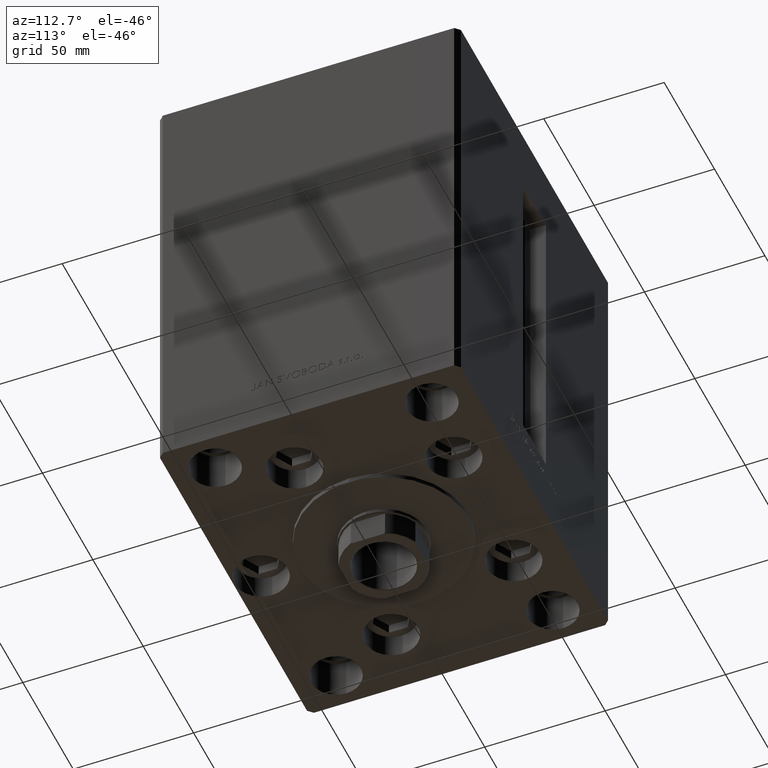
[diagram: clean part render]
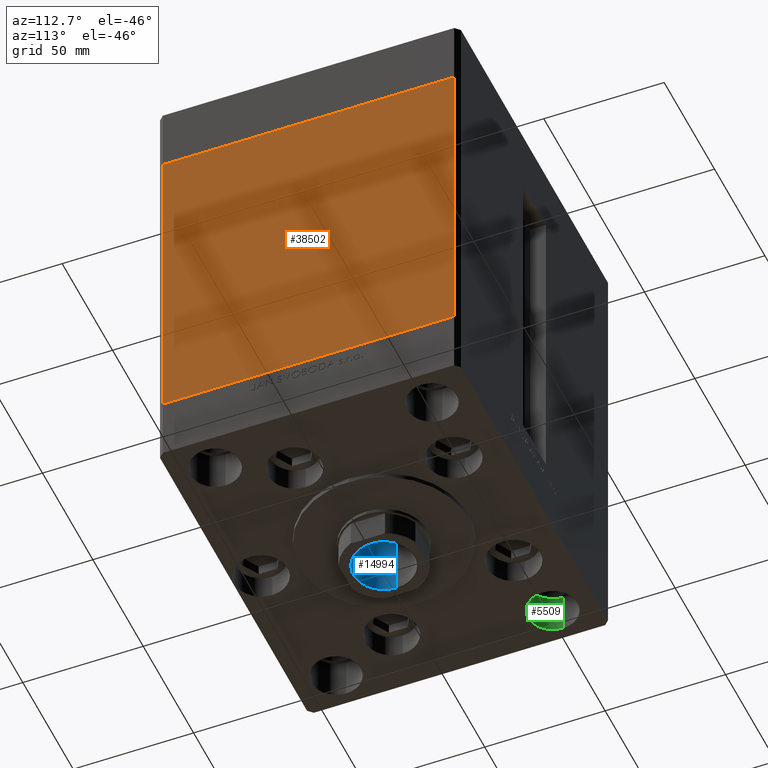
[diagram: same view with three faces highlighted in distinct colors, each labeled with its STEP entity id]
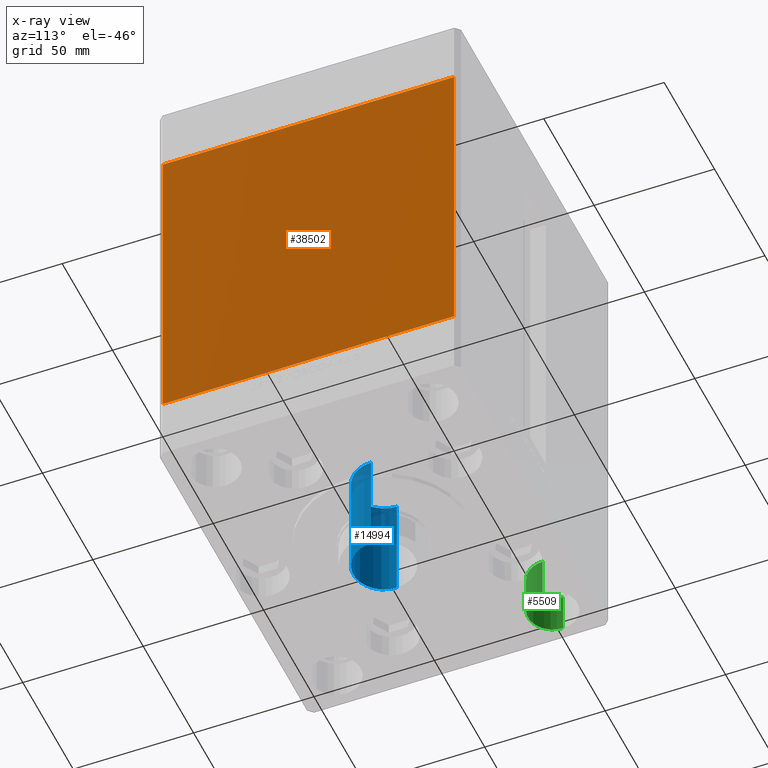
[diagram: x-ray of the same camera — body ghosted, the three highlighted faces saturated]
A machine part, auxiliary view with three faces highlighted in distinct colors.
The next image is the same camera in x-ray (body ghosted, the three faces saturated) — at least one of them is partly hidden behind the body in this view.
Their STEP definitions:

[orange] entity #38502 — the highlighted planar face has unit normal (1, -0, 0).
#124 = EDGE_CURVE ( 'NONE', #22841, #17940, #18735, .T. ) ;
#1098 = LINE ( 'NONE', #48137, #32062 ) ;
#1224 = CARTESIAN_POINT ( 'NONE',  ( 75.00000000000001421, 60.50000000000000000, 132.0000000000000000 ) ) ;
#1730 = LINE ( 'NONE', #1224, #46688 ) ;
#1803 = DIRECTION ( 'NONE',  ( 2.293849224432141861E-16, 1.000000000000000000, 0.000000000000000000 ) ) ;
#1838 = ORIENTED_EDGE ( 'NONE', *, *, #21310, .F. ) ;
#2305 = FACE_OUTER_BOUND ( 'NONE', #16033, .T. ) ;
#4684 = VECTOR ( 'NONE', #42601, 1000.000000000000000 ) ;
#7272 = CARTESIAN_POINT ( 'NONE',  ( 75.00000000000001421, 60.50000000000000000, 0.000000000000000000 ) ) ;
#10235 = ORIENTED_EDGE ( 'NONE', *, *, #124, .F. ) ;
#10344 = DIRECTION ( 'NONE',  ( -0.000000000000000000, -0.000000000000000000, -1.000000000000000000 ) ) ;
#10569 = CARTESIAN_POINT ( 'NONE',  ( 74.99999999999998579, -60.50000000000000000, 0.000000000000000000 ) ) ;
#12198 = VERTEX_POINT ( 'NONE', #44148 ) ;
#14515 = PLANE ( 'NONE',  #40558 ) ;
#15718 = EDGE_CURVE ( 'NONE', #36650, #17940, #37308, .T. ) ;
#16033 = EDGE_LOOP ( 'NONE', ( #10235, #1838, #46097, #40533 ) ) ;
#17310 = EDGE_CURVE ( 'NONE', #12198, #36650, #1098, .T. ) ;
#17371 = VECTOR ( 'NONE', #10344, 1000.000000000000000 ) ;
#17940 = VERTEX_POINT ( 'NONE', #10569 ) ;
#18735 = LINE ( 'NONE', #7272, #4684 ) ;
#21310 = EDGE_CURVE ( 'NONE', #12198, #22841, #1730, .T. ) ;
#22841 = VERTEX_POINT ( 'NONE', #27562 ) ;
#24996 = DIRECTION ( 'NONE',  ( -2.293849224432141861E-16, -1.000000000000000000, 0.000000000000000000 ) ) ;
#25124 = CARTESIAN_POINT ( 'NONE',  ( 74.99999999999998579, -60.50000000000000000, 132.0000000000000000 ) ) ;
#27562 = CARTESIAN_POINT ( 'NONE',  ( 75.00000000000001421, 60.50000000000000000, 0.000000000000000000 ) ) ;
#30024 = CARTESIAN_POINT ( 'NONE',  ( 75.00000000000001421, 60.50000000000000000, 132.0000000000000000 ) ) ;
#32062 = VECTOR ( 'NONE', #24996, 1000.000000000000000 ) ;
#33602 = DIRECTION ( 'NONE',  ( 1.000000000000000000, -2.293849224432141861E-16, 0.000000000000000000 ) ) ;
#36328 = DIRECTION ( 'NONE',  ( -0.000000000000000000, -0.000000000000000000, -1.000000000000000000 ) ) ;
#36650 = VERTEX_POINT ( 'NONE', #25124 ) ;
#37308 = LINE ( 'NONE', #37805, #17371 ) ;
#37805 = CARTESIAN_POINT ( 'NONE',  ( 74.99999999999998579, -60.50000000000000000, 132.0000000000000000 ) ) ;
#38502 = ADVANCED_FACE ( 'NONE', ( #2305 ), #14515, .T. ) ;
#40533 = ORIENTED_EDGE ( 'NONE', *, *, #15718, .T. ) ;
#40558 = AXIS2_PLACEMENT_3D ( 'NONE', #30024, #33602, #1803 ) ;
#42601 = DIRECTION ( 'NONE',  ( -2.293849224432141861E-16, -1.000000000000000000, 0.000000000000000000 ) ) ;
#44148 = CARTESIAN_POINT ( 'NONE',  ( 75.00000000000001421, 60.50000000000000000, 132.0000000000000000 ) ) ;
#46097 = ORIENTED_EDGE ( 'NONE', *, *, #17310, .T. ) ;
#46688 = VECTOR ( 'NONE', #36328, 1000.000000000000000 ) ;
#48137 = CARTESIAN_POINT ( 'NONE',  ( 75.00000000000001421, 60.50000000000000000, 132.0000000000000000 ) ) ;

[blue] entity #14994 — the highlighted cylindrical surface (edge-blend (fillet) strip) has radius 12.75 mm, axis along (0, 0, -1).
#919 = DIRECTION ( 'NONE',  ( -0.000000000000000000, -0.000000000000000000, 1.000000000000000000 ) ) ;
#1148 = EDGE_CURVE ( 'NONE', #34946, #17015, #25063, .T. ) ;
#1747 = CARTESIAN_POINT ( 'NONE',  ( -12.74999999999999112, 1.561424668912874125E-15, 122.5000000000000142 ) ) ;
#3943 = FACE_OUTER_BOUND ( 'NONE', #21888, .T. ) ;
#6648 = EDGE_CURVE ( 'NONE', #11940, #34946, #47117, .T. ) ;
#9540 = CARTESIAN_POINT ( 'NONE',  ( 12.74999999999999467, 0.000000000000000000, 167.5000000000000000 ) ) ;
#9808 = ORIENTED_EDGE ( 'NONE', *, *, #1148, .T. ) ;
#11070 = CARTESIAN_POINT ( 'NONE',  ( -12.74999999999999467, 1.561424668912874519E-15, 167.2000000000000455 ) ) ;
#11903 = AXIS2_PLACEMENT_3D ( 'NONE', #45203, #17756, #13684 ) ;
#11940 = VERTEX_POINT ( 'NONE', #1747 ) ;
#13684 = DIRECTION ( 'NONE',  ( 1.000000000000000000, 0.000000000000000000, 0.000000000000000000 ) ) ;
#14994 = ADVANCED_FACE ( 'NONE', ( #3943 ), #26599, .F. ) ;
#17015 = VERTEX_POINT ( 'NONE', #19226 ) ;
#17756 = DIRECTION ( 'NONE',  ( -0.000000000000000000, -0.000000000000000000, 1.000000000000000000 ) ) ;
#19226 = CARTESIAN_POINT ( 'NONE',  ( 12.74999999999999467, 0.000000000000000000, 167.2000000000000455 ) ) ;
#20697 = CARTESIAN_POINT ( 'NONE',  ( 0.000000000000000000, 0.000000000000000000, 167.2000000000000455 ) ) ;
#21888 = EDGE_LOOP ( 'NONE', ( #47128, #43707, #9808, #31103 ) ) ;
#22132 = AXIS2_PLACEMENT_3D ( 'NONE', #22792, #30668, #34500 ) ;
#22792 = CARTESIAN_POINT ( 'NONE',  ( 0.000000000000000000, 0.000000000000000000, 167.5000000000000000 ) ) ;
#23943 = CARTESIAN_POINT ( 'NONE',  ( 12.74999999999999112, 0.000000000000000000, 122.5000000000000142 ) ) ;
#24045 = VERTEX_POINT ( 'NONE', #23943 ) ;
#25063 = CIRCLE ( 'NONE', #32382, 12.74999999999999467 ) ;
#26599 = CYLINDRICAL_SURFACE ( 'NONE', #22132, 12.74999999999999467 ) ;
#27563 = VECTOR ( 'NONE', #39480, 1000.000000000000000 ) ;
#29325 = DIRECTION ( 'NONE',  ( 1.000000000000000000, 0.000000000000000000, 0.000000000000000000 ) ) ;
#30668 = DIRECTION ( 'NONE',  ( -0.000000000000000000, -0.000000000000000000, 1.000000000000000000 ) ) ;
#31103 = ORIENTED_EDGE ( 'NONE', *, *, #36978, .F. ) ;
#31705 = LINE ( 'NONE', #9540, #48651 ) ;
#31875 = CARTESIAN_POINT ( 'NONE',  ( -12.74999999999999467, 1.561424668912874519E-15, 167.5000000000000000 ) ) ;
#32382 = AXIS2_PLACEMENT_3D ( 'NONE', #20697, #40524, #29325 ) ;
#33026 = CIRCLE ( 'NONE', #11903, 12.74999999999999112 ) ;
#34500 = DIRECTION ( 'NONE',  ( 1.000000000000000000, 0.000000000000000000, 0.000000000000000000 ) ) ;
#34946 = VERTEX_POINT ( 'NONE', #11070 ) ;
#36978 = EDGE_CURVE ( 'NONE', #24045, #17015, #31705, .T. ) ;
#39204 = EDGE_CURVE ( 'NONE', #11940, #24045, #33026, .T. ) ;
#39480 = DIRECTION ( 'NONE',  ( -0.000000000000000000, -0.000000000000000000, 1.000000000000000000 ) ) ;
#40524 = DIRECTION ( 'NONE',  ( 0.000000000000000000, 0.000000000000000000, 1.000000000000000000 ) ) ;
#43707 = ORIENTED_EDGE ( 'NONE', *, *, #6648, .T. ) ;
#45203 = CARTESIAN_POINT ( 'NONE',  ( 0.000000000000000000, 0.000000000000000000, 122.5000000000000142 ) ) ;
#47117 = LINE ( 'NONE', #31875, #27563 ) ;
#47128 = ORIENTED_EDGE ( 'NONE', *, *, #39204, .F. ) ;
#48651 = VECTOR ( 'NONE', #919, 1000.000000000000000 ) ;

[green] entity #5509 — the highlighted cylindrical surface (edge-blend (fillet) strip) has radius 10.25 mm, axis along (0, 0, -1).
#1339 = DIRECTION ( 'NONE',  ( -0.000000000000000000, -0.000000000000000000, 1.000000000000000000 ) ) ;
#1507 = CARTESIAN_POINT ( 'NONE',  ( 49.75000000000000000, 45.00000000000000000, 0.000000000000000000 ) ) ;
#2963 = CARTESIAN_POINT ( 'NONE',  ( 70.25000000000000000, 45.00000000000000000, -17.00000000000000000 ) ) ;
#3086 = CARTESIAN_POINT ( 'NONE',  ( 60.00000000000000000, 45.00000000000000000, -17.00000000000000000 ) ) ;
#4142 = DIRECTION ( 'NONE',  ( -0.000000000000000000, -0.000000000000000000, 1.000000000000000000 ) ) ;
#5509 = ADVANCED_FACE ( 'NONE', ( #46862 ), #12035, .F. ) ;
#6250 = AXIS2_PLACEMENT_3D ( 'NONE', #36528, #37527, #17682 ) ;
#11787 = DIRECTION ( 'NONE',  ( 1.000000000000000000, 0.000000000000000000, 0.000000000000000000 ) ) ;
#12035 = CYLINDRICAL_SURFACE ( 'NONE', #44538, 10.24999999999999467 ) ;
#14818 = VERTEX_POINT ( 'NONE', #37559 ) ;
#17518 = CIRCLE ( 'NONE', #6250, 10.24999999999999467 ) ;
#17682 = DIRECTION ( 'NONE',  ( 1.000000000000000000, 0.000000000000000000, 0.000000000000000000 ) ) ;
#19156 = ORIENTED_EDGE ( 'NONE', *, *, #20947, .T. ) ;
#20434 = LINE ( 'NONE', #24740, #44224 ) ;
#20947 = EDGE_CURVE ( 'NONE', #36830, #32281, #20434, .T. ) ;
#21144 = ORIENTED_EDGE ( 'NONE', *, *, #28822, .F. ) ;
#24203 = ORIENTED_EDGE ( 'NONE', *, *, #41918, .T. ) ;
#24740 = CARTESIAN_POINT ( 'NONE',  ( 49.75000000000000000, 45.00000000000000000, -17.00000000000000000 ) ) ;
#26841 = EDGE_CURVE ( 'NONE', #14818, #35232, #34278, .T. ) ;
#28822 = EDGE_CURVE ( 'NONE', #36830, #14818, #45999, .T. ) ;
#30412 = ORIENTED_EDGE ( 'NONE', *, *, #26841, .F. ) ;
#30581 = AXIS2_PLACEMENT_3D ( 'NONE', #3086, #48879, #34390 ) ;
#31091 = CARTESIAN_POINT ( 'NONE',  ( 70.25000000000000000, 45.00000000000000000, 0.000000000000000000 ) ) ;
#32281 = VERTEX_POINT ( 'NONE', #1507 ) ;
#33946 = VECTOR ( 'NONE', #41872, 1000.000000000000000 ) ;
#34278 = LINE ( 'NONE', #2963, #33946 ) ;
#34390 = DIRECTION ( 'NONE',  ( 1.000000000000000000, 0.000000000000000000, 0.000000000000000000 ) ) ;
#35232 = VERTEX_POINT ( 'NONE', #31091 ) ;
#36528 = CARTESIAN_POINT ( 'NONE',  ( 60.00000000000000000, 45.00000000000000000, 0.000000000000000000 ) ) ;
#36830 = VERTEX_POINT ( 'NONE', #39313 ) ;
#37527 = DIRECTION ( 'NONE',  ( 0.000000000000000000, 0.000000000000000000, 1.000000000000000000 ) ) ;
#37559 = CARTESIAN_POINT ( 'NONE',  ( 70.25000000000000000, 45.00000000000000000, -17.00000000000000000 ) ) ;
#39235 = CARTESIAN_POINT ( 'NONE',  ( 60.00000000000000000, 45.00000000000000000, -17.00000000000000000 ) ) ;
#39313 = CARTESIAN_POINT ( 'NONE',  ( 49.75000000000000000, 45.00000000000000000, -17.00000000000000000 ) ) ;
#41872 = DIRECTION ( 'NONE',  ( -0.000000000000000000, -0.000000000000000000, 1.000000000000000000 ) ) ;
#41918 = EDGE_CURVE ( 'NONE', #32281, #35232, #17518, .T. ) ;
#44224 = VECTOR ( 'NONE', #1339, 1000.000000000000000 ) ;
#44538 = AXIS2_PLACEMENT_3D ( 'NONE', #39235, #4142, #11787 ) ;
#45999 = CIRCLE ( 'NONE', #30581, 10.24999999999999467 ) ;
#46862 = FACE_OUTER_BOUND ( 'NONE', #50207, .T. ) ;
#48879 = DIRECTION ( 'NONE',  ( 0.000000000000000000, 0.000000000000000000, 1.000000000000000000 ) ) ;
#50207 = EDGE_LOOP ( 'NONE', ( #21144, #19156, #24203, #30412 ) ) ;